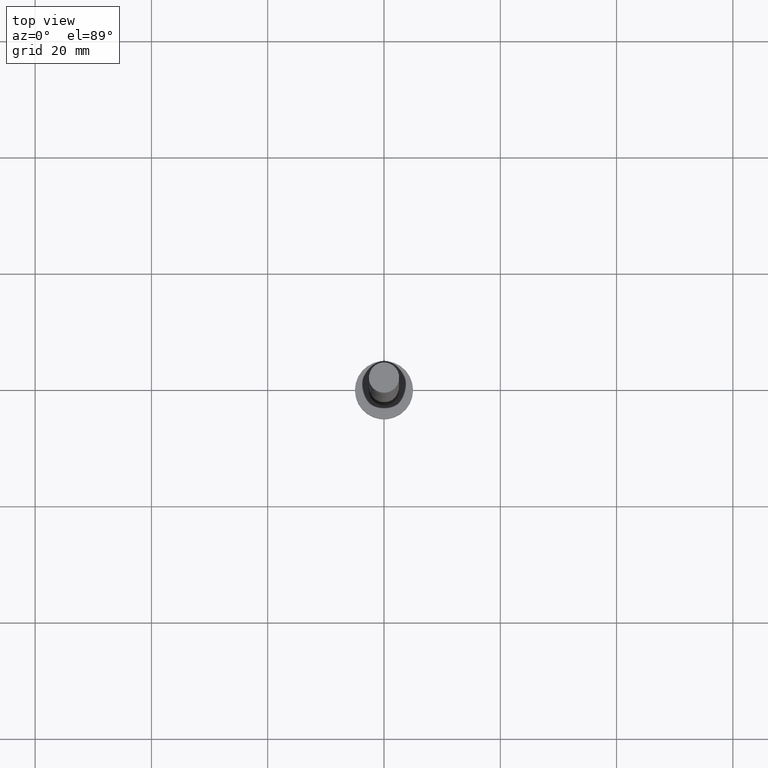
[diagram: clean part render]
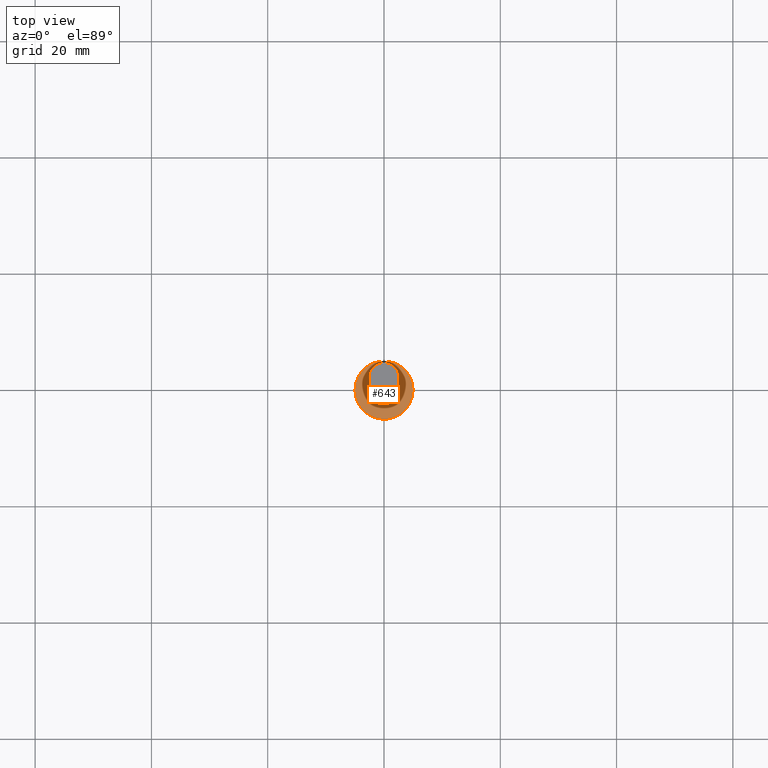
[diagram: same view with one face highlighted and labeled with its STEP entity id]
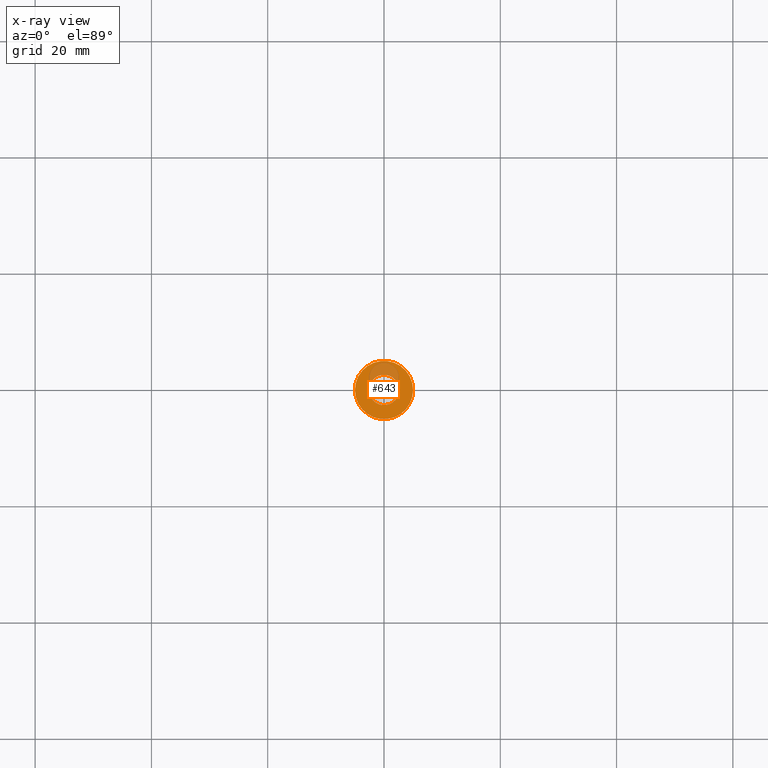
[diagram: x-ray of the same camera — body ghosted, the highlighted face saturated]
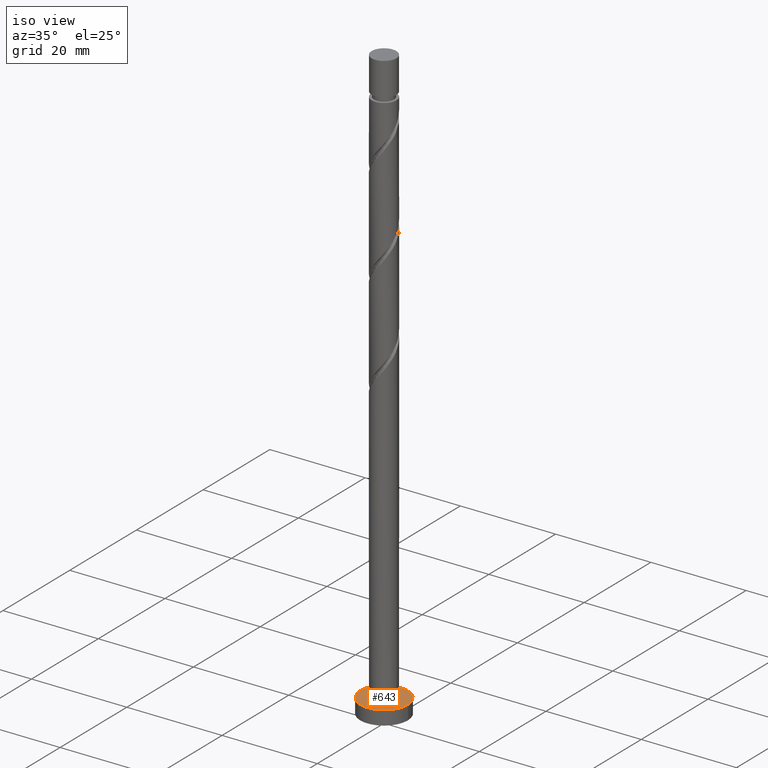
[diagram: same view with one face highlighted and labeled with its STEP entity id]
A machine part, top view. The second image highlights one B-rep face of the part: STEP entity #643.
The next image is the same camera in x-ray: the body ghosted, the highlighted face saturated — about 19% of this face is hidden behind the body in this view.
A second angle (iso view) of the same face is appended — the face is thin or edge-on in the first view.
In plain terms, the highlighted planar face has unit normal (0, 0, 1).
Its self-contained STEP definition (entity closure, byte-faithful):
#36 = PLANE ( 'NONE',  #1518 ) ;
#49 = CIRCLE ( 'NONE', #1305, 2.600000000000000089 ) ;
#64 = FACE_BOUND ( 'NONE', #304, .T. ) ;
#96 = CIRCLE ( 'NONE', #271, 2.600000000000000089 ) ;
#171 = DIRECTION ( 'NONE',  ( 0.000000000000000000, 0.000000000000000000, 1.000000000000000000 ) ) ;
#180 = CARTESIAN_POINT ( 'NONE',  ( 0.000000000000000000, 0.000000000000000000, 3.000000000000000000 ) ) ;
#192 = DIRECTION ( 'NONE',  ( 1.000000000000000000, 0.000000000000000000, 0.000000000000000000 ) ) ;
#212 = CARTESIAN_POINT ( 'NONE',  ( -2.600000000000000089, 0.000000000000000000, 3.000000000000000000 ) ) ;
#216 = VERTEX_POINT ( 'NONE', #1013 ) ;
#263 = DIRECTION ( 'NONE',  ( 0.000000000000000000, 0.000000000000000000, 1.000000000000000000 ) ) ;
#271 = AXIS2_PLACEMENT_3D ( 'NONE', #1347, #263, #1103 ) ;
#285 = CARTESIAN_POINT ( 'NONE',  ( 0.000000000000000000, 0.000000000000000000, 3.000000000000000000 ) ) ;
#286 = ORIENTED_EDGE ( 'NONE', *, *, #1569, .F. ) ;
#297 = CIRCLE ( 'NONE', #473, 5.000000000000000000 ) ;
#304 = EDGE_LOOP ( 'NONE', ( #471, #286 ) ) ;
#319 = DIRECTION ( 'NONE',  ( 0.000000000000000000, 0.000000000000000000, 1.000000000000000000 ) ) ;
#375 = DIRECTION ( 'NONE',  ( 1.000000000000000000, 0.000000000000000000, 0.000000000000000000 ) ) ;
#404 = VERTEX_POINT ( 'NONE', #1066 ) ;
#471 = ORIENTED_EDGE ( 'NONE', *, *, #1082, .F. ) ;
#473 = AXIS2_PLACEMENT_3D ( 'NONE', #1570, #1319, #375 ) ;
#643 = ADVANCED_FACE ( 'NONE', ( #64, #1110 ), #36, .T. ) ;
#789 = DIRECTION ( 'NONE',  ( 1.000000000000000000, 0.000000000000000000, 0.000000000000000000 ) ) ;
#886 = VERTEX_POINT ( 'NONE', #212 ) ;
#894 = ORIENTED_EDGE ( 'NONE', *, *, #1285, .T. ) ;
#945 = CARTESIAN_POINT ( 'NONE',  ( 0.000000000000000000, 0.000000000000000000, 3.000000000000000000 ) ) ;
#963 = AXIS2_PLACEMENT_3D ( 'NONE', #945, #319, #789 ) ;
#989 = DIRECTION ( 'NONE',  ( 1.000000000000000000, 0.000000000000000000, -0.000000000000000000 ) ) ;
#1013 = CARTESIAN_POINT ( 'NONE',  ( -5.000000000000000000, 0.000000000000000000, 3.000000000000000000 ) ) ;
#1066 = CARTESIAN_POINT ( 'NONE',  ( 2.600000000000000089, 3.184081677783117698E-16, 3.000000000000000000 ) ) ;
#1082 = EDGE_CURVE ( 'NONE', #886, #404, #96, .T. ) ;
#1088 = EDGE_LOOP ( 'NONE', ( #1461, #894 ) ) ;
#1103 = DIRECTION ( 'NONE',  ( 1.000000000000000000, 0.000000000000000000, 0.000000000000000000 ) ) ;
#1110 = FACE_OUTER_BOUND ( 'NONE', #1088, .T. ) ;
#1145 = CIRCLE ( 'NONE', #963, 5.000000000000000000 ) ;
#1258 = DIRECTION ( 'NONE',  ( 0.000000000000000000, 0.000000000000000000, 1.000000000000000000 ) ) ;
#1285 = EDGE_CURVE ( 'NONE', #1484, #216, #1145, .T. ) ;
#1300 = EDGE_CURVE ( 'NONE', #216, #1484, #297, .T. ) ;
#1305 = AXIS2_PLACEMENT_3D ( 'NONE', #285, #171, #192 ) ;
#1319 = DIRECTION ( 'NONE',  ( 0.000000000000000000, 0.000000000000000000, 1.000000000000000000 ) ) ;
#1347 = CARTESIAN_POINT ( 'NONE',  ( 0.000000000000000000, 0.000000000000000000, 3.000000000000000000 ) ) ;
#1391 = CARTESIAN_POINT ( 'NONE',  ( 5.000000000000000000, 6.123233995736766282E-16, 3.000000000000000000 ) ) ;
#1461 = ORIENTED_EDGE ( 'NONE', *, *, #1300, .T. ) ;
#1484 = VERTEX_POINT ( 'NONE', #1391 ) ;
#1518 = AXIS2_PLACEMENT_3D ( 'NONE', #180, #1258, #989 ) ;
#1569 = EDGE_CURVE ( 'NONE', #404, #886, #49, .T. ) ;
#1570 = CARTESIAN_POINT ( 'NONE',  ( 0.000000000000000000, 0.000000000000000000, 3.000000000000000000 ) ) ;